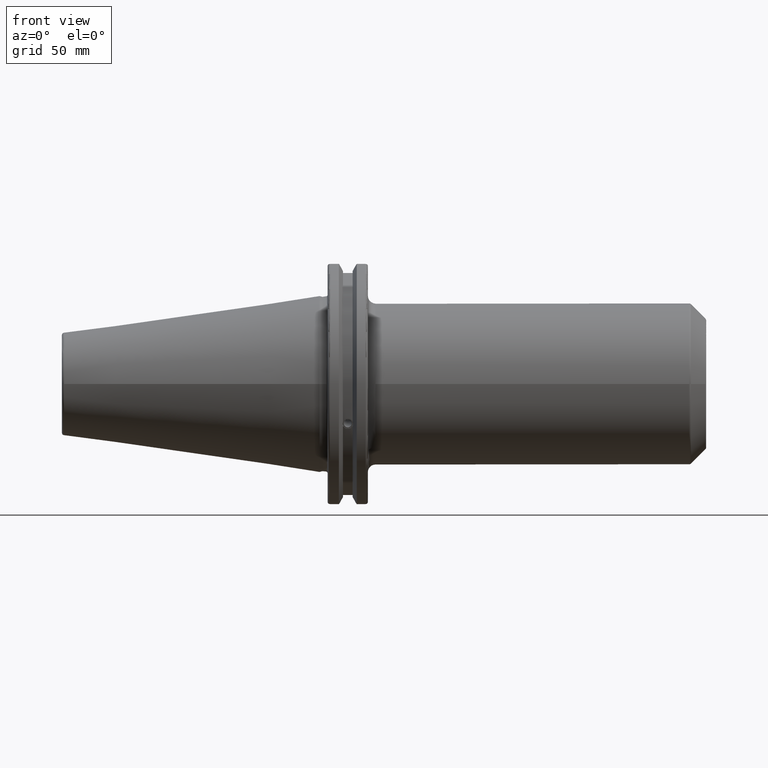
[diagram: clean part render]
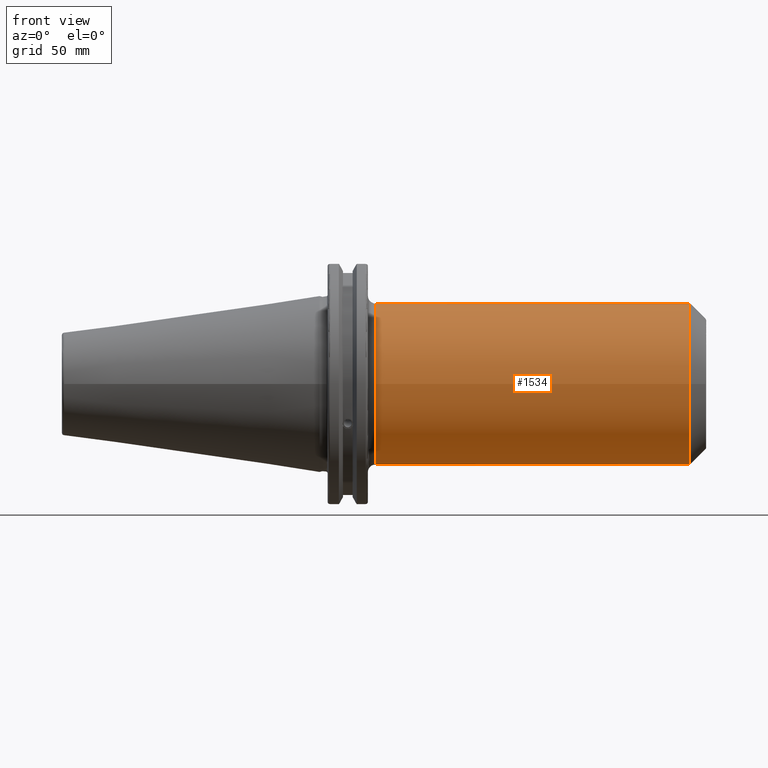
[diagram: same view with one face highlighted and labeled with its STEP entity id]
A machine part, front view. The second image highlights one B-rep face of the part: STEP entity #1534.
In plain terms, the highlighted cylindrical surface (bore or boss wall) has radius 31.75 mm, axis along (1, 0, 0).
Its self-contained STEP definition (entity closure, byte-faithful):
#58=FACE_BOUND('',#221,.T.);
#59=FACE_BOUND('',#222,.T.);
#129=FACE_OUTER_BOUND('',#220,.T.);
#220=EDGE_LOOP('',(#1065,#1066,#1067,#1068,#1069,#1070));
#221=EDGE_LOOP('',(#1071,#1072));
#222=EDGE_LOOP('',(#1073,#1074));
#327=B_SPLINE_CURVE_WITH_KNOTS('',3,(#2292,#2293,#2294,#2295,#2296,#2297,
#2298,#2299,#2300,#2301),.UNSPECIFIED.,.F.,.F.,(4,2,2,2,4),(0.,0.374443492453986,
0.748886984907972,1.13657310866181,1.52425923241565),.UNSPECIFIED.);
#328=B_SPLINE_CURVE_WITH_KNOTS('',3,(#2302,#2303,#2304,#2305,#2306,#2307,
#2308,#2309,#2310,#2311,#2312,#2313,#2314,#2315,#2316,#2317,#2318,#2319,
#2320,#2321,#2322,#2323,#2324,#2325,#2326,#2327),.UNSPECIFIED.,.F.,.F.,
(4,2,2,2,2,2,2,2,2,2,2,2,4),(1.52425923241565,1.91194535616949,2.29963147992333,
2.67407497237732,3.0485184648313,3.42296195728529,3.79740544973927,4.18509157349311,
4.57277769724695,4.96046382100079,5.34814994475463,5.72259343720862,6.09703692966261),
 .UNSPECIFIED.);
#331=B_SPLINE_CURVE_WITH_KNOTS('',3,(#2377,#2378,#2379,#2380,#2381,#2382,
#2383,#2384,#2385,#2386),.UNSPECIFIED.,.F.,.F.,(4,2,2,2,4),(0.,0.374443492453987,
0.748886984907974,1.13657310866181,1.52425923241565),.UNSPECIFIED.);
#332=B_SPLINE_CURVE_WITH_KNOTS('',3,(#2387,#2388,#2389,#2390,#2391,#2392,
#2393,#2394,#2395,#2396,#2397,#2398,#2399,#2400,#2401,#2402,#2403,#2404,
#2405,#2406,#2407,#2408,#2409,#2410,#2411,#2412),.UNSPECIFIED.,.F.,.F.,
(4,2,2,2,2,2,2,2,2,2,2,2,4),(1.52425923241565,1.91194535616949,2.29963147992333,
2.67407497237732,3.0485184648313,3.42296195728529,3.79740544973928,4.18509157349312,
4.57277769724696,4.96046382100079,5.34814994475463,5.72259343720862,6.09703692966261),
 .UNSPECIFIED.);
#376=LINE('',#2431,#468);
#468=VECTOR('',#1855,31.75);
#562=CIRCLE('',#1652,31.75);
#563=CIRCLE('',#1653,31.75);
#566=CIRCLE('',#1658,31.75);
#567=CIRCLE('',#1659,31.75);
#638=VERTEX_POINT('',#2289);
#639=VERTEX_POINT('',#2291);
#644=VERTEX_POINT('',#2374);
#645=VERTEX_POINT('',#2376);
#648=VERTEX_POINT('',#2418);
#649=VERTEX_POINT('',#2420);
#652=VERTEX_POINT('',#2430);
#653=VERTEX_POINT('',#2432);
#800=EDGE_CURVE('',#639,#638,#327,.T.);
#801=EDGE_CURVE('',#638,#639,#328,.T.);
#808=EDGE_CURVE('',#645,#644,#331,.T.);
#809=EDGE_CURVE('',#644,#645,#332,.T.);
#813=EDGE_CURVE('',#648,#649,#562,.T.);
#814=EDGE_CURVE('',#649,#648,#563,.T.);
#818=EDGE_CURVE('',#649,#652,#376,.T.);
#819=EDGE_CURVE('',#653,#652,#566,.T.);
#820=EDGE_CURVE('',#652,#653,#567,.T.);
#1065=ORIENTED_EDGE('',*,*,#814,.F.);
#1066=ORIENTED_EDGE('',*,*,#818,.T.);
#1067=ORIENTED_EDGE('',*,*,#819,.F.);
#1068=ORIENTED_EDGE('',*,*,#820,.F.);
#1069=ORIENTED_EDGE('',*,*,#818,.F.);
#1070=ORIENTED_EDGE('',*,*,#813,.F.);
#1071=ORIENTED_EDGE('',*,*,#800,.T.);
#1072=ORIENTED_EDGE('',*,*,#801,.T.);
#1073=ORIENTED_EDGE('',*,*,#808,.T.);
#1074=ORIENTED_EDGE('',*,*,#809,.T.);
#1501=CYLINDRICAL_SURFACE('',#1657,31.75);
#1534=ADVANCED_FACE('',(#129,#58,#59),#1501,.T.);
#1652=AXIS2_PLACEMENT_3D('',#2421,#1842,#1843);
#1653=AXIS2_PLACEMENT_3D('',#2422,#1844,#1845);
#1657=AXIS2_PLACEMENT_3D('',#2429,#1853,#1854);
#1658=AXIS2_PLACEMENT_3D('',#2433,#1856,#1857);
#1659=AXIS2_PLACEMENT_3D('',#2434,#1858,#1859);
#1842=DIRECTION('center_axis',(1.,0.,0.));
#1843=DIRECTION('ref_axis',(0.,-1.,1.83697019872103E-16));
#1844=DIRECTION('center_axis',(1.,0.,0.));
#1845=DIRECTION('ref_axis',(0.,-1.,1.83697019872103E-16));
#1853=DIRECTION('center_axis',(1.,0.,0.));
#1854=DIRECTION('ref_axis',(0.,1.,0.));
#1855=DIRECTION('',(-1.,0.,0.));
#1856=DIRECTION('center_axis',(-1.,0.,0.));
#1857=DIRECTION('ref_axis',(0.,-1.,-1.22464679914735E-16));
#1858=DIRECTION('center_axis',(-1.,0.,0.));
#1859=DIRECTION('ref_axis',(0.,-1.,-1.22464679914735E-16));
#2289=CARTESIAN_POINT('',(119.19,31.75,-1.3164953090834E-15));
#2291=CARTESIAN_POINT('',(108.44,30.343922243347,-9.34392224334695));
#2292=CARTESIAN_POINT('Ctrl Pts',(108.44,30.343922243347,-9.34392224334695));
#2293=CARTESIAN_POINT('Ctrl Pts',(109.688144974847,30.343922243347,-9.34392224334695));
#2294=CARTESIAN_POINT('Ctrl Pts',(111.031211855755,30.4087350837418,-9.14147258450894));
#2295=CARTESIAN_POINT('Ctrl Pts',(113.553779692047,30.6513254176603,-8.29180053230485));
#2296=CARTESIAN_POINT('Ctrl Pts',(114.733608974055,30.8260579112038,-7.64468628242531));
#2297=CARTESIAN_POINT('Ctrl Pts',(116.699915095657,31.1742711651337,-6.07427780465312));
#2298=CARTESIAN_POINT('Ctrl Pts',(117.613223034465,31.3730025068592,-5.02458478722689));
#2299=CARTESIAN_POINT('Ctrl Pts',(118.85936287237,31.663406845729,-2.63446841359295));
#2300=CARTESIAN_POINT('Ctrl Pts',(119.19,31.75,-1.29228707917947));
#2301=CARTESIAN_POINT('Ctrl Pts',(119.19,31.75,-2.4980018054066E-15));
#2302=CARTESIAN_POINT('Ctrl Pts',(119.19,31.75,-8.32667268468867E-16));
#2303=CARTESIAN_POINT('Ctrl Pts',(119.19,31.75,1.29228707917946));
#2304=CARTESIAN_POINT('Ctrl Pts',(118.85936287237,31.663406845729,2.63446841359294));
#2305=CARTESIAN_POINT('Ctrl Pts',(117.613223034465,31.3730025068592,5.02458478722689));
#2306=CARTESIAN_POINT('Ctrl Pts',(116.699915095657,31.1742711651337,6.07427780465312));
#2307=CARTESIAN_POINT('Ctrl Pts',(114.733608974055,30.8260579112038,7.64468628242531));
#2308=CARTESIAN_POINT('Ctrl Pts',(113.553779692047,30.6513254176603,8.29180053230487));
#2309=CARTESIAN_POINT('Ctrl Pts',(111.031211855755,30.4087350837418,9.14147258450894));
#2310=CARTESIAN_POINT('Ctrl Pts',(109.688144974847,30.343922243347,9.34392224334695));
#2311=CARTESIAN_POINT('Ctrl Pts',(107.191855025153,30.343922243347,9.34392224334695));
#2312=CARTESIAN_POINT('Ctrl Pts',(105.848788144245,30.4087350837418,9.14147258450894));
#2313=CARTESIAN_POINT('Ctrl Pts',(103.326220307953,30.6513254176603,8.29180053230485));
#2314=CARTESIAN_POINT('Ctrl Pts',(102.146391025945,30.8260579112038,7.64468628242531));
#2315=CARTESIAN_POINT('Ctrl Pts',(100.180084904343,31.1742711651337,6.07427780465312));
#2316=CARTESIAN_POINT('Ctrl Pts',(99.2667769655355,31.3730025068592,5.02458478722689));
#2317=CARTESIAN_POINT('Ctrl Pts',(98.0206371276303,31.663406845729,2.63446841359295));
#2318=CARTESIAN_POINT('Ctrl Pts',(97.69,31.75,1.29228707917947));
#2319=CARTESIAN_POINT('Ctrl Pts',(97.69,31.75,-1.29228707917946));
#2320=CARTESIAN_POINT('Ctrl Pts',(98.0206371276303,31.663406845729,-2.63446841359294));
#2321=CARTESIAN_POINT('Ctrl Pts',(99.2667769655355,31.3730025068592,-5.02458478722689));
#2322=CARTESIAN_POINT('Ctrl Pts',(100.180084904343,31.1742711651337,-6.07427780465312));
#2323=CARTESIAN_POINT('Ctrl Pts',(102.146391025945,30.8260579112038,-7.6446862824253));
#2324=CARTESIAN_POINT('Ctrl Pts',(103.326220307953,30.6513254176603,-8.29180053230485));
#2325=CARTESIAN_POINT('Ctrl Pts',(105.848788144245,30.4087350837418,-9.14147258450894));
#2326=CARTESIAN_POINT('Ctrl Pts',(107.191855025153,30.343922243347,-9.34392224334695));
#2327=CARTESIAN_POINT('Ctrl Pts',(108.44,30.343922243347,-9.34392224334695));
#2374=CARTESIAN_POINT('',(142.05,31.75,-1.3164953090834E-15));
#2376=CARTESIAN_POINT('',(131.3,30.343922243347,-9.34392224334695));
#2377=CARTESIAN_POINT('Ctrl Pts',(131.3,30.343922243347,-9.34392224334695));
#2378=CARTESIAN_POINT('Ctrl Pts',(132.548144974847,30.343922243347,-9.34392224334695));
#2379=CARTESIAN_POINT('Ctrl Pts',(133.891211855755,30.4087350837418,-9.14147258450894));
#2380=CARTESIAN_POINT('Ctrl Pts',(136.413779692047,30.6513254176603,-8.29180053230485));
#2381=CARTESIAN_POINT('Ctrl Pts',(137.593608974055,30.8260579112038,-7.64468628242531));
#2382=CARTESIAN_POINT('Ctrl Pts',(139.559915095657,31.1742711651337,-6.07427780465312));
#2383=CARTESIAN_POINT('Ctrl Pts',(140.473223034465,31.3730025068592,-5.02458478722688));
#2384=CARTESIAN_POINT('Ctrl Pts',(141.71936287237,31.663406845729,-2.63446841359294));
#2385=CARTESIAN_POINT('Ctrl Pts',(142.05,31.75,-1.29228707917947));
#2386=CARTESIAN_POINT('Ctrl Pts',(142.05,31.75,-2.22044604925031E-15));
#2387=CARTESIAN_POINT('Ctrl Pts',(142.05,31.75,-1.38777878078145E-15));
#2388=CARTESIAN_POINT('Ctrl Pts',(142.05,31.75,1.29228707917946));
#2389=CARTESIAN_POINT('Ctrl Pts',(141.71936287237,31.663406845729,2.63446841359293));
#2390=CARTESIAN_POINT('Ctrl Pts',(140.473223034465,31.3730025068592,5.02458478722688));
#2391=CARTESIAN_POINT('Ctrl Pts',(139.559915095657,31.1742711651337,6.07427780465312));
#2392=CARTESIAN_POINT('Ctrl Pts',(137.593608974055,30.8260579112038,7.64468628242531));
#2393=CARTESIAN_POINT('Ctrl Pts',(136.413779692047,30.6513254176603,8.29180053230486));
#2394=CARTESIAN_POINT('Ctrl Pts',(133.891211855755,30.4087350837418,9.14147258450894));
#2395=CARTESIAN_POINT('Ctrl Pts',(132.548144974847,30.343922243347,9.34392224334695));
#2396=CARTESIAN_POINT('Ctrl Pts',(130.051855025153,30.343922243347,9.34392224334695));
#2397=CARTESIAN_POINT('Ctrl Pts',(128.708788144245,30.4087350837418,9.14147258450893));
#2398=CARTESIAN_POINT('Ctrl Pts',(126.186220307953,30.6513254176603,8.29180053230484));
#2399=CARTESIAN_POINT('Ctrl Pts',(125.006391025945,30.8260579112038,7.64468628242531));
#2400=CARTESIAN_POINT('Ctrl Pts',(123.040084904343,31.1742711651337,6.07427780465312));
#2401=CARTESIAN_POINT('Ctrl Pts',(122.126776965535,31.3730025068592,5.02458478722688));
#2402=CARTESIAN_POINT('Ctrl Pts',(120.88063712763,31.663406845729,2.63446841359294));
#2403=CARTESIAN_POINT('Ctrl Pts',(120.55,31.75,1.29228707917947));
#2404=CARTESIAN_POINT('Ctrl Pts',(120.55,31.75,-1.29228707917946));
#2405=CARTESIAN_POINT('Ctrl Pts',(120.88063712763,31.663406845729,-2.63446841359293));
#2406=CARTESIAN_POINT('Ctrl Pts',(122.126776965535,31.3730025068592,-5.02458478722688));
#2407=CARTESIAN_POINT('Ctrl Pts',(123.040084904343,31.1742711651337,-6.07427780465312));
#2408=CARTESIAN_POINT('Ctrl Pts',(125.006391025945,30.8260579112038,-7.64468628242531));
#2409=CARTESIAN_POINT('Ctrl Pts',(126.186220307953,30.6513254176603,-8.29180053230484));
#2410=CARTESIAN_POINT('Ctrl Pts',(128.708788144245,30.4087350837418,-9.14147258450893));
#2411=CARTESIAN_POINT('Ctrl Pts',(130.051855025153,30.343922243347,-9.34392224334695));
#2412=CARTESIAN_POINT('Ctrl Pts',(131.3,30.343922243347,-9.34392224334695));
#2418=CARTESIAN_POINT('',(145.735786437627,-3.88825358729285E-15,31.75));
#2420=CARTESIAN_POINT('',(145.735786437627,-31.75,-3.88825358729285E-15));
#2421=CARTESIAN_POINT('Origin',(145.735786437627,0.,0.));
#2422=CARTESIAN_POINT('Origin',(145.735786437627,0.,0.));
#2429=CARTESIAN_POINT('Origin',(82.6,0.,0.));
#2430=CARTESIAN_POINT('',(22.05,-31.75,-3.88825358729285E-15));
#2431=CARTESIAN_POINT('',(82.6,-31.75,-3.88825358729285E-15));
#2432=CARTESIAN_POINT('',(22.05,-3.88825358729285E-15,-31.75));
#2433=CARTESIAN_POINT('Origin',(22.05,0.,0.));
#2434=CARTESIAN_POINT('Origin',(22.05,0.,0.));